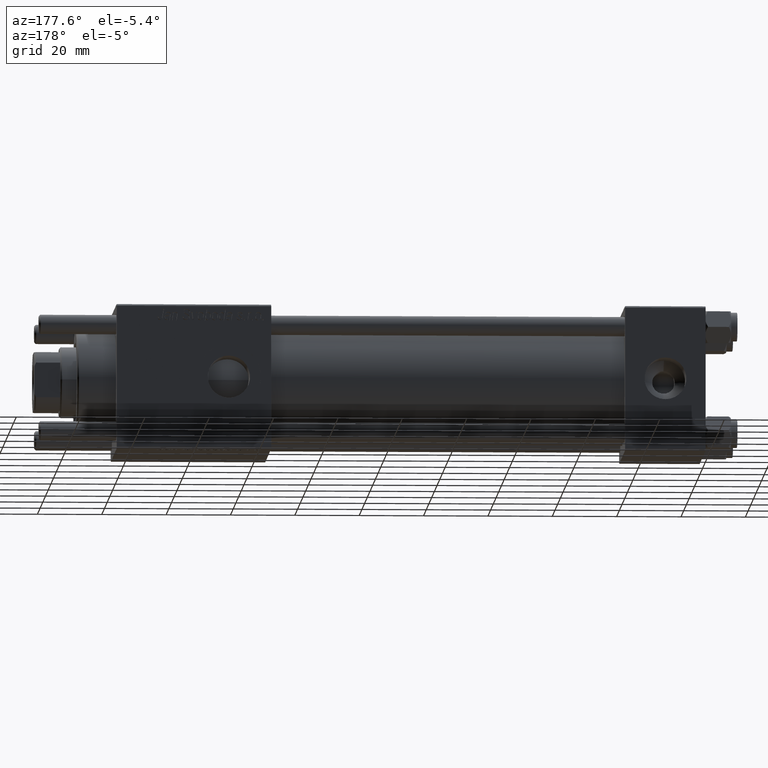
[diagram: clean part render]
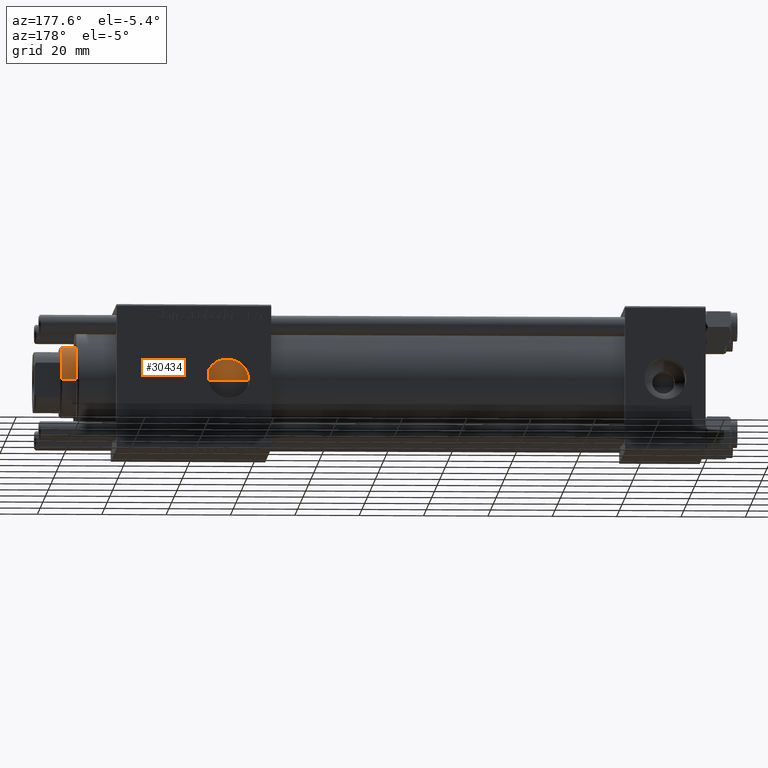
[diagram: same view with one face highlighted and labeled with its STEP entity id]
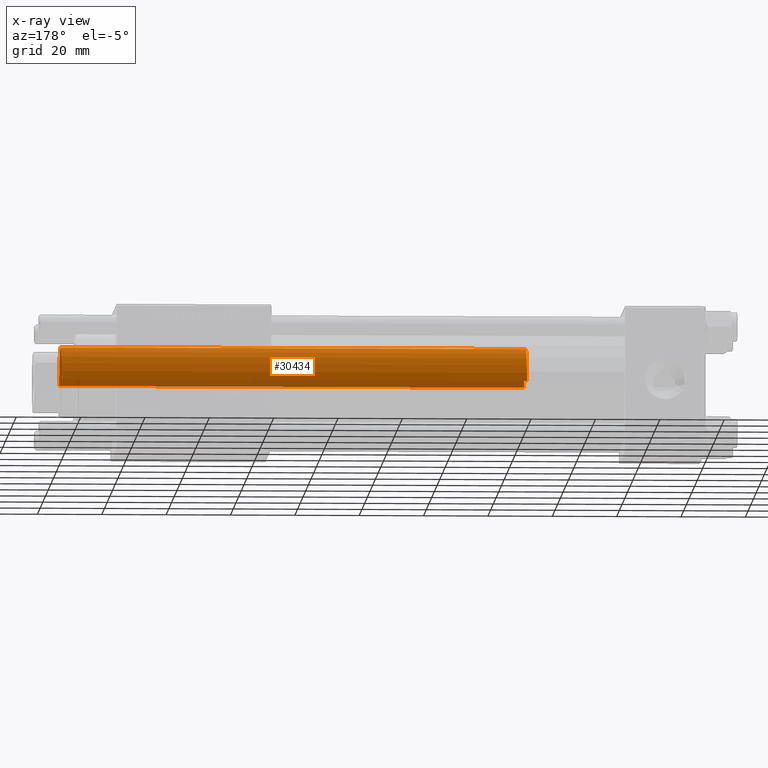
[diagram: x-ray of the same camera — body ghosted, the highlighted face saturated]
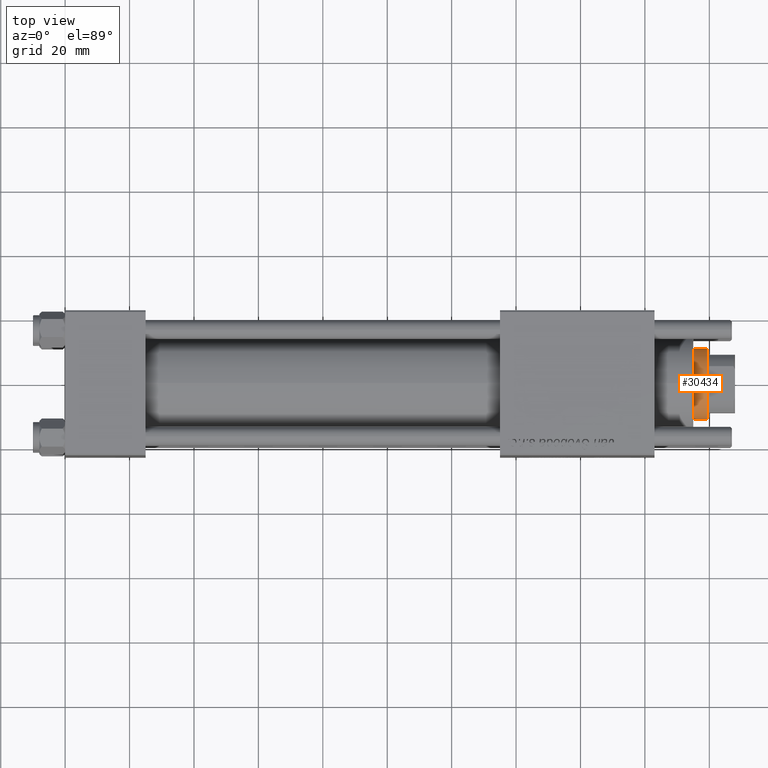
[diagram: same view with one face highlighted and labeled with its STEP entity id]
A machine part, auxiliary view. The second image highlights one B-rep face of the part: STEP entity #30434.
The next image is the same camera in x-ray: the body ghosted, the highlighted face saturated — about 15% of this face is hidden behind the body in this view.
A second angle (top view) of the same face is appended — the face is thin or edge-on in the first view.
In plain terms, the highlighted cylindrical surface (edge-blend (fillet) strip) has radius 11 mm, axis along (-1, 0, 0).
Its self-contained STEP definition (entity closure, byte-faithful):
#1202 = DIRECTION ( 'NONE',  ( 1.000000000000000000, 0.000000000000000000, 0.000000000000000000 ) ) ;
#1419 = CARTESIAN_POINT ( 'NONE',  ( -11.00000000000000000, 0.000000000000000000, 174.5000000000000284 ) ) ;
#2428 = VERTEX_POINT ( 'NONE', #47753 ) ;
#3641 = ORIENTED_EDGE ( 'NONE', *, *, #14297, .T. ) ;
#4744 = DIRECTION ( 'NONE',  ( -0.000000000000000000, -0.000000000000000000, -1.000000000000000000 ) ) ;
#6057 = CARTESIAN_POINT ( 'NONE',  ( -11.00000000000000000, 0.000000000000000000, 175.0000000000000000 ) ) ;
#10043 = EDGE_LOOP ( 'NONE', ( #55445, #10233, #3641, #54803 ) ) ;
#10233 = ORIENTED_EDGE ( 'NONE', *, *, #46655, .T. ) ;
#11606 = EDGE_CURVE ( 'NONE', #2428, #54215, #20374, .T. ) ;
#14297 = EDGE_CURVE ( 'NONE', #24651, #56475, #44843, .T. ) ;
#16785 = DIRECTION ( 'NONE',  ( 1.000000000000000000, 0.000000000000000000, 0.000000000000000000 ) ) ;
#17791 = DIRECTION ( 'NONE',  ( -0.000000000000000000, -0.000000000000000000, -1.000000000000000000 ) ) ;
#18248 = DIRECTION ( 'NONE',  ( -1.000000000000000000, 0.000000000000000000, 0.000000000000000000 ) ) ;
#20374 = LINE ( 'NONE', #37870, #43515 ) ;
#20526 = CARTESIAN_POINT ( 'NONE',  ( 11.00000000000000000, 1.347111479062088405E-15, 30.00000000000000000 ) ) ;
#24651 = VERTEX_POINT ( 'NONE', #1419 ) ;
#25977 = CARTESIAN_POINT ( 'NONE',  ( 0.000000000000000000, 0.000000000000000000, 30.00000000000000000 ) ) ;
#30434 = ADVANCED_FACE ( 'NONE', ( #44081 ), #43217, .T. ) ;
#30882 = CARTESIAN_POINT ( 'NONE',  ( -11.00000000000000000, 0.000000000000000000, 30.00000000000000000 ) ) ;
#33669 = AXIS2_PLACEMENT_3D ( 'NONE', #35968, #40540, #1202 ) ;
#35968 = CARTESIAN_POINT ( 'NONE',  ( 0.000000000000000000, 0.000000000000000000, 174.5000000000000284 ) ) ;
#36778 = DIRECTION ( 'NONE',  ( -0.000000000000000000, -0.000000000000000000, -1.000000000000000000 ) ) ;
#37870 = CARTESIAN_POINT ( 'NONE',  ( 11.00000000000000000, 1.347111479062088405E-15, 175.0000000000000000 ) ) ;
#40540 = DIRECTION ( 'NONE',  ( 0.000000000000000000, 0.000000000000000000, -1.000000000000000000 ) ) ;
#43188 = DIRECTION ( 'NONE',  ( 0.000000000000000000, 0.000000000000000000, 1.000000000000000000 ) ) ;
#43217 = CYLINDRICAL_SURFACE ( 'NONE', #53368, 11.00000000000000000 ) ;
#43515 = VECTOR ( 'NONE', #17791, 1000.000000000000000 ) ;
#44081 = FACE_OUTER_BOUND ( 'NONE', #10043, .T. ) ;
#44678 = CIRCLE ( 'NONE', #33669, 11.00000000000000000 ) ;
#44843 = LINE ( 'NONE', #6057, #55385 ) ;
#46621 = CIRCLE ( 'NONE', #50274, 11.00000000000000000 ) ;
#46655 = EDGE_CURVE ( 'NONE', #2428, #24651, #44678, .T. ) ;
#47753 = CARTESIAN_POINT ( 'NONE',  ( 11.00000000000000000, 1.347111479062088405E-15, 174.5000000000000284 ) ) ;
#50274 = AXIS2_PLACEMENT_3D ( 'NONE', #25977, #43188, #16785 ) ;
#52709 = CARTESIAN_POINT ( 'NONE',  ( 0.000000000000000000, 0.000000000000000000, 175.0000000000000000 ) ) ;
#53368 = AXIS2_PLACEMENT_3D ( 'NONE', #52709, #4744, #18248 ) ;
#54215 = VERTEX_POINT ( 'NONE', #20526 ) ;
#54710 = EDGE_CURVE ( 'NONE', #56475, #54215, #46621, .T. ) ;
#54803 = ORIENTED_EDGE ( 'NONE', *, *, #54710, .T. ) ;
#55385 = VECTOR ( 'NONE', #36778, 1000.000000000000000 ) ;
#55445 = ORIENTED_EDGE ( 'NONE', *, *, #11606, .F. ) ;
#56475 = VERTEX_POINT ( 'NONE', #30882 ) ;